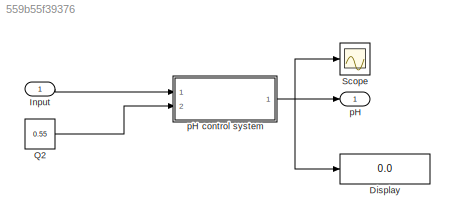
MODEL slx_559b55f39376
KIND model
CONFIG AbsTol = auto
CONFIG EnableMultiTasking = on
CONFIG FixedStep = auto
CONFIG MaxStep = auto
CONFIG MinStep = auto
CONFIG RelTol = 1e-3
CONFIG SampleTimeConstraint = Unconstrained
CONFIG Solver = ode45
CONFIG SolverName = ode45
CONFIG StartTime = 0.0
CONFIG StopTime = 5000
BLOCK [Display] Display
  Decimation = 1
  Ports = [1]
BLOCK [Inport] Input
  IconDisplay = Port number
BLOCK [Constant] Q2
  Value = 0.55
BLOCK [Scope] Scope
  Floating = off
  NumInputPorts = 1
  Ports = [1]
  ScopeSpecificationString = Simulink.scopes.TimeScopeBlockCfg('CurrentConfiguration', extmgr.ConfigurationSet(extmgr.Configuration('Core','General UI',true),extmgr.Configuration('Core','Source UI',true),extmgr.Configuration('Sources','WiredSimulink',true),extmgr.Configuration('Visuals','Time Domain',true,'SerializedDisplays',{struct('MinYLimReal','6.89142','MaxYLimReal','8.36572','YLabelReal','','MinYLimMag','6.89142','MaxYL...<+1361ch>
BLOCK [Outport] pH
  IconDisplay = Port number
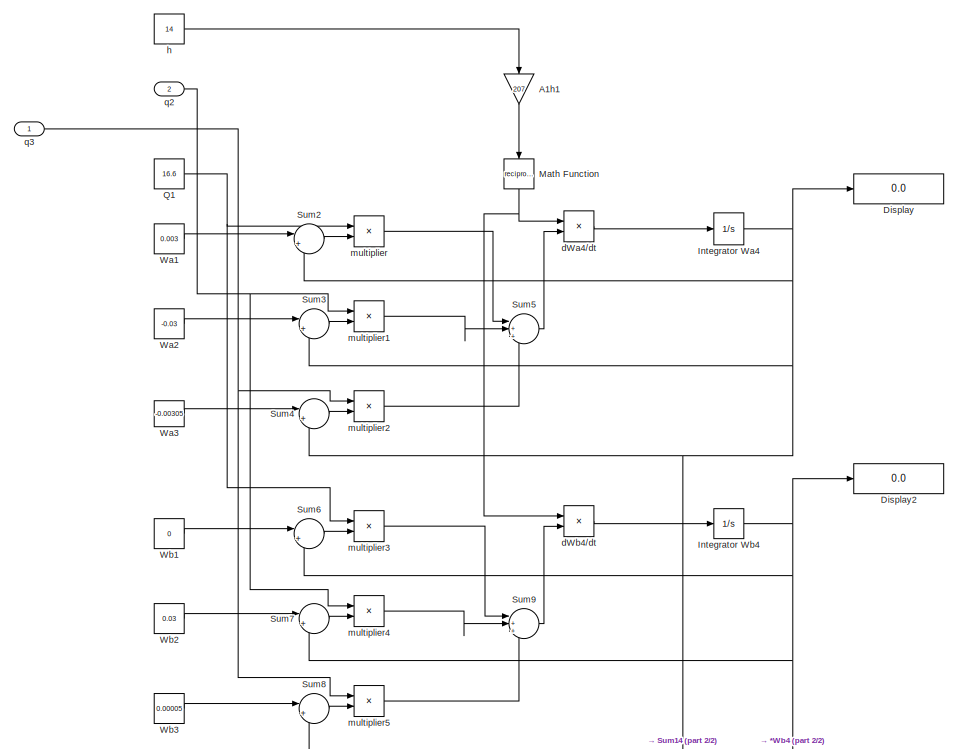
[diagram: pH control system - part 1/2, full width, top band]
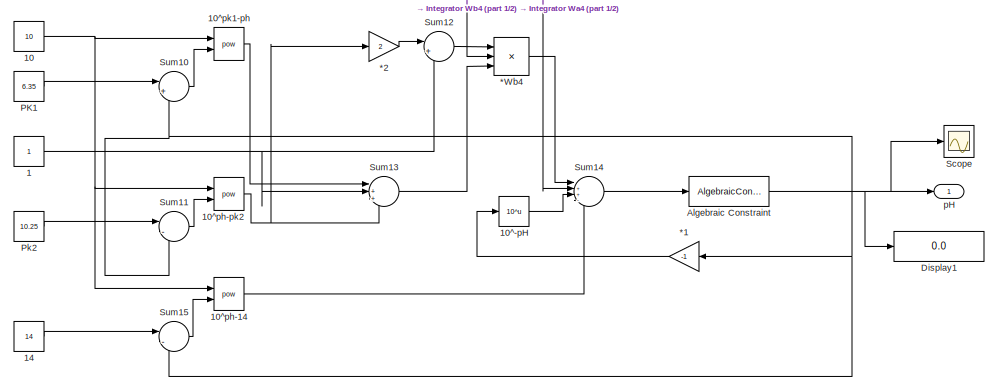
[diagram: pH control system - part 2/2, full width, bottom band]
BLOCK [SubSystem] pH control system
  Ports = [2, 1]
  RequestExecContextInheritance = off
BLOCK [Gain] pH control system/*1
  Gain = -1
  OutDataTypeStr = Inherit: Inherit via internal rule
  ParamDataTypeStr = Inherit: Inherit via internal rule
  SaturateOnIntegerOverflow = off
BLOCK [Gain] pH control system/*2
  Gain = 2
  OutDataTypeStr = Inherit: Inherit via internal rule
  ParamDataTypeStr = Inherit: Inherit via internal rule
  SaturateOnIntegerOverflow = off
BLOCK [Product] pH control system/*Wb4
  InputSameDT = off
  Inputs = **/
  OutDataTypeStr = Inherit: Inherit via internal rule
  Ports = [3, 1]
  RndMeth = Floor
  SaturateOnIntegerOverflow = off
BLOCK [Constant] pH control system/1
BLOCK [Constant] pH control system/10
  Value = 10
BLOCK [Math] pH control system/10^-pH
  Operator = 10^u
  Ports = [1, 1]
BLOCK [Math] pH control system/10^ph-14
  Operator = pow
  Ports = [2, 1]
BLOCK [Math] pH control system/10^ph-pk2
  Operator = pow
  Ports = [2, 1]
BLOCK [Math] pH control system/10^pk1-ph
  Operator = pow
  Ports = [2, 1]
BLOCK [Constant] pH control system/14
  Value = 14
BLOCK [Gain] pH control system/A1h1
  Gain = 207
  OutDataTypeStr = Inherit: Inherit via internal rule
  ParamDataTypeStr = Inherit: Inherit via internal rule
  SaturateOnIntegerOverflow = off
BLOCK [AlgebraicConstraint] pH control system/Algebraic Constraint
  InitialGuess = 7
BLOCK [Display] pH control system/Display
  Decimation = 1
  Ports = [1]
BLOCK [Display] pH control system/Display1
  Decimation = 1
  Ports = [1]
BLOCK [Display] pH control system/Display2
  Decimation = 1
  Ports = [1]
BLOCK [Integrator] pH control system/Integrator Wa4
  InitialCondition = -0.000432
  Ports = [1, 1]
BLOCK [Integrator] pH control system/Integrator Wb4
  InitialCondition = 0.000528
  Ports = [1, 1]
BLOCK [Math] pH control system/Math Function
  Operator = reciprocal
  Ports = [1, 1]
BLOCK [Constant] pH control system/PK1
  Value = 6.35
BLOCK [Constant] pH control system/Pk2
  Value = 10.25
BLOCK [Constant] pH control system/Q1
  Value = 16.6
BLOCK [Scope] pH control system/Scope
  Floating = off
  NumInputPorts = 1
  Ports = [1]
  ScopeSpecificationString = Simulink.scopes.TimeScopeBlockCfg('CurrentConfiguration', extmgr.ConfigurationSet(extmgr.Configuration('Core','General UI',true),extmgr.Configuration('Core','Source UI',true),extmgr.Configuration('Sources','WiredSimulink',true,'DataLoggingVariableName','ScopeData1'),extmgr.Configuration('Visuals','Time Domain',true,'SerializedDisplays',{struct('MinYLimReal','8.21783','MaxYLimReal','8.22243','YLabe...<+1405ch>
BLOCK [Sum] pH control system/Sum10
  IconShape = round
  InputSameDT = off
  Inputs = |+-
  OutDataTypeStr = Inherit: Inherit via internal rule
  Ports = [2, 1]
  SaturateOnIntegerOverflow = off
BLOCK [Sum] pH control system/Sum11
  IconShape = round
  InputSameDT = off
  Inputs = |-+
  OutDataTypeStr = Inherit: Inherit via internal rule
  Ports = [2, 1]
  SaturateOnIntegerOverflow = off
BLOCK [Sum] pH control system/Sum12
  IconShape = round
  InputSameDT = off
  Inputs = |++
  OutDataTypeStr = Inherit: Inherit via internal rule
  Ports = [2, 1]
  SaturateOnIntegerOverflow = off
BLOCK [Sum] pH control system/Sum13
  IconShape = round
  InputSameDT = off
  Inputs = |+++
  OutDataTypeStr = Inherit: Inherit via internal rule
  Ports = [3, 1]
  SaturateOnIntegerOverflow = off
BLOCK [Sum] pH control system/Sum14
  IconShape = round
  InputSameDT = off
  Inputs = |++-+
  OutDataTypeStr = Inherit: Inherit via internal rule
  Ports = [4, 1]
  SaturateOnIntegerOverflow = off
BLOCK [Sum] pH control system/Sum15
  IconShape = round
  InputSameDT = off
  Inputs = |-+
  OutDataTypeStr = Inherit: Inherit via internal rule
  Ports = [2, 1]
  SaturateOnIntegerOverflow = off
BLOCK [Sum] pH control system/Sum2
  IconShape = round
  InputSameDT = off
  Inputs = |+-
  OutDataTypeStr = Inherit: Inherit via internal rule
  Ports = [2, 1]
  SaturateOnIntegerOverflow = off
BLOCK [Sum] pH control system/Sum3
  IconShape = round
  InputSameDT = off
  Inputs = |+-
  OutDataTypeStr = Inherit: Inherit via internal rule
  Ports = [2, 1]
  SaturateOnIntegerOverflow = off
BLOCK [Sum] pH control system/Sum4
  IconShape = round
  InputSameDT = off
  Inputs = |+-
  OutDataTypeStr = Inherit: Inherit via internal rule
  Ports = [2, 1]
  SaturateOnIntegerOverflow = off
BLOCK [Sum] pH control system/Sum5
  IconShape = round
  InputSameDT = off
  Inputs = |+++
  OutDataTypeStr = Inherit: Inherit via internal rule
  Ports = [3, 1]
  SaturateOnIntegerOverflow = off
BLOCK [Sum] pH control system/Sum6
  IconShape = round
  InputSameDT = off
  Inputs = |+-
  OutDataTypeStr = Inherit: Inherit via internal rule
  Ports = [2, 1]
  SaturateOnIntegerOverflow = off
BLOCK [Sum] pH control system/Sum7
  IconShape = round
  InputSameDT = off
  Inputs = |+-
  OutDataTypeStr = Inherit: Inherit via internal rule
  Ports = [2, 1]
  SaturateOnIntegerOverflow = off
BLOCK [Sum] pH control system/Sum8
  IconShape = round
  InputSameDT = off
  Inputs = |+-
  OutDataTypeStr = Inherit: Inherit via internal rule
  Ports = [2, 1]
  SaturateOnIntegerOverflow = off
BLOCK [Sum] pH control system/Sum9
  IconShape = round
  InputSameDT = off
  Inputs = |+++
  OutDataTypeStr = Inherit: Inherit via internal rule
  Ports = [3, 1]
  SaturateOnIntegerOverflow = off
BLOCK [Constant] pH control system/Wa1
  Value = 0.003
BLOCK [Constant] pH control system/Wa2
  Value = -0.03
BLOCK [Constant] pH control system/Wa3
  Value = -0.00305
BLOCK [Constant] pH control system/Wb1
  Value = 0
BLOCK [Constant] pH control system/Wb2
  Value = 0.03
BLOCK [Constant] pH control system/Wb3
  Value = 0.00005
BLOCK [Product] pH control system/dWa4//dt
  InputSameDT = off
  OutDataTypeStr = Inherit: Inherit via internal rule
  Ports = [2, 1]
  RndMeth = Floor
  SaturateOnIntegerOverflow = off
BLOCK [Product] pH control system/dWb4//dt
  InputSameDT = off
  OutDataTypeStr = Inherit: Inherit via internal rule
  Ports = [2, 1]
  RndMeth = Floor
  SaturateOnIntegerOverflow = off
BLOCK [Constant] pH control system/h
  Value = 14
BLOCK [Product] pH control system/multiplier
  InputSameDT = off
  OutDataTypeStr = Inherit: Inherit via internal rule
  Ports = [2, 1]
  RndMeth = Floor
  SaturateOnIntegerOverflow = off
BLOCK [Product] pH control system/multiplier1
  InputSameDT = off
  OutDataTypeStr = Inherit: Inherit via internal rule
  Ports = [2, 1]
  RndMeth = Floor
  SaturateOnIntegerOverflow = off
BLOCK [Product] pH control system/multiplier2
  InputSameDT = off
  OutDataTypeStr = Inherit: Inherit via internal rule
  Ports = [2, 1]
  RndMeth = Floor
  SaturateOnIntegerOverflow = off
BLOCK [Product] pH control system/multiplier3
  InputSameDT = off
  OutDataTypeStr = Inherit: Inherit via internal rule
  Ports = [2, 1]
  RndMeth = Floor
  SaturateOnIntegerOverflow = off
BLOCK [Product] pH control system/multiplier4
  InputSameDT = off
  OutDataTypeStr = Inherit: Inherit via internal rule
  Ports = [2, 1]
  RndMeth = Floor
  SaturateOnIntegerOverflow = off
BLOCK [Product] pH control system/multiplier5
  InputSameDT = off
  OutDataTypeStr = Inherit: Inherit via internal rule
  Ports = [2, 1]
  RndMeth = Floor
  SaturateOnIntegerOverflow = off
BLOCK [Outport] pH control system/pH
  IconDisplay = Port number
BLOCK [Inport] pH control system/q2
  IconDisplay = Port number
  Port = 2
BLOCK [Inport] pH control system/q3
  IconDisplay = Port number
LINE Input:1 -> pH control system:1
LINE Q2:1 -> pH control system:2
LINE pH control system/*1:1 -> pH control system/10^-pH:1
LINE pH control system/*2:1 -> pH control system/Sum12:1
LINE pH control system/*Wb4:1 -> pH control system/Sum14:1
NET pH control system/10:1 -> pH control system/10^ph-14:1, pH control system/10^ph-pk2:1, pH control system/10^pk1-ph:1
LINE pH control system/10^-pH:1 -> pH control system/Sum14:3
LINE pH control system/10^ph-14:1 -> pH control system/Sum14:4
NET pH control system/10^ph-pk2:1 -> pH control system/*2:1, pH control system/Sum13:3
LINE pH control system/10^pk1-ph:1 -> pH control system/Sum13:1
LINE pH control system/14:1 -> pH control system/Sum15:1
NET pH control system/1:1 -> pH control system/Sum12:2, pH control system/Sum13:2
LINE pH control system/A1h1:1 -> pH control system/Math Function:1
NET pH control system/Algebraic Constraint:1 -> pH control system/*1:1, pH control system/Display1:1, pH control system/Scope:1, pH control system/Sum10:2, pH control system/Sum11:2, pH control system/Sum15:2, pH control system/pH:1
NET pH control system/Integrator Wa4:1 -> pH control system/Display:1, pH control system/Sum14:2, pH control system/Sum2:2, pH control system/Sum3:2, pH control system/Sum4:2
NET pH control system/Integrator Wb4:1 -> pH control system/*Wb4:2, pH control system/Display2:1, pH control system/Sum6:2, pH control system/Sum7:2, pH control system/Sum8:2
NET pH control system/Math Function:1 -> pH control system/dWa4//dt:1, pH control system/dWb4//dt:1
LINE pH control system/PK1:1 -> pH control system/Sum10:1
LINE pH control system/Pk2:1 -> pH control system/Sum11:1
NET pH control system/Q1:1 -> pH control system/multiplier3:1, pH control system/multiplier:1
LINE pH control system/Sum10:1 -> pH control system/10^pk1-ph:2
LINE pH control system/Sum11:1 -> pH control system/10^ph-pk2:2
LINE pH control system/Sum12:1 -> pH control system/*Wb4:1
LINE pH control system/Sum13:1 -> pH control system/*Wb4:3
LINE pH control system/Sum14:1 -> pH control system/Algebraic Constraint:1
LINE pH control system/Sum15:1 -> pH control system/10^ph-14:2
LINE pH control system/Sum2:1 -> pH control system/multiplier:2
LINE pH control system/Sum3:1 -> pH control system/multiplier1:2
LINE pH control system/Sum4:1 -> pH control system/multiplier2:2
LINE pH control system/Sum5:1 -> pH control system/dWa4//dt:2
LINE pH control system/Sum6:1 -> pH control system/multiplier3:2
LINE pH control system/Sum7:1 -> pH control system/multiplier4:2
LINE pH control system/Sum8:1 -> pH control system/multiplier5:2
LINE pH control system/Sum9:1 -> pH control system/dWb4//dt:2
LINE pH control system/Wa1:1 -> pH control system/Sum2:1
LINE pH control system/Wa2:1 -> pH control system/Sum3:1
LINE pH control system/Wa3:1 -> pH control system/Sum4:1
LINE pH control system/Wb1:1 -> pH control system/Sum6:1
LINE pH control system/Wb2:1 -> pH control system/Sum7:1
LINE pH control system/Wb3:1 -> pH control system/Sum8:1
LINE pH control system/dWa4//dt:1 -> pH control system/Integrator Wa4:1
LINE pH control system/dWb4//dt:1 -> pH control system/Integrator Wb4:1
LINE pH control system/h:1 -> pH control system/A1h1:1
LINE pH control system/multiplier1:1 -> pH control system/Sum5:2
LINE pH control system/multiplier2:1 -> pH control system/Sum5:3
LINE pH control system/multiplier3:1 -> pH control system/Sum9:1
LINE pH control system/multiplier4:1 -> pH control system/Sum9:2
LINE pH control system/multiplier5:1 -> pH control system/Sum9:3
LINE pH control system/multiplier:1 -> pH control system/Sum5:1
NET pH control system/q2:1 -> pH control system/multiplier1:1, pH control system/multiplier4:1
NET pH control system/q3:1 -> pH control system/multiplier2:1, pH control system/multiplier5:1
NET pH control system:1 -> Display:1, Scope:1, pH:1
note: NET lines group one-source signal fan-out (src -> all destinations, sorted); 1:1 wires keep LINE
